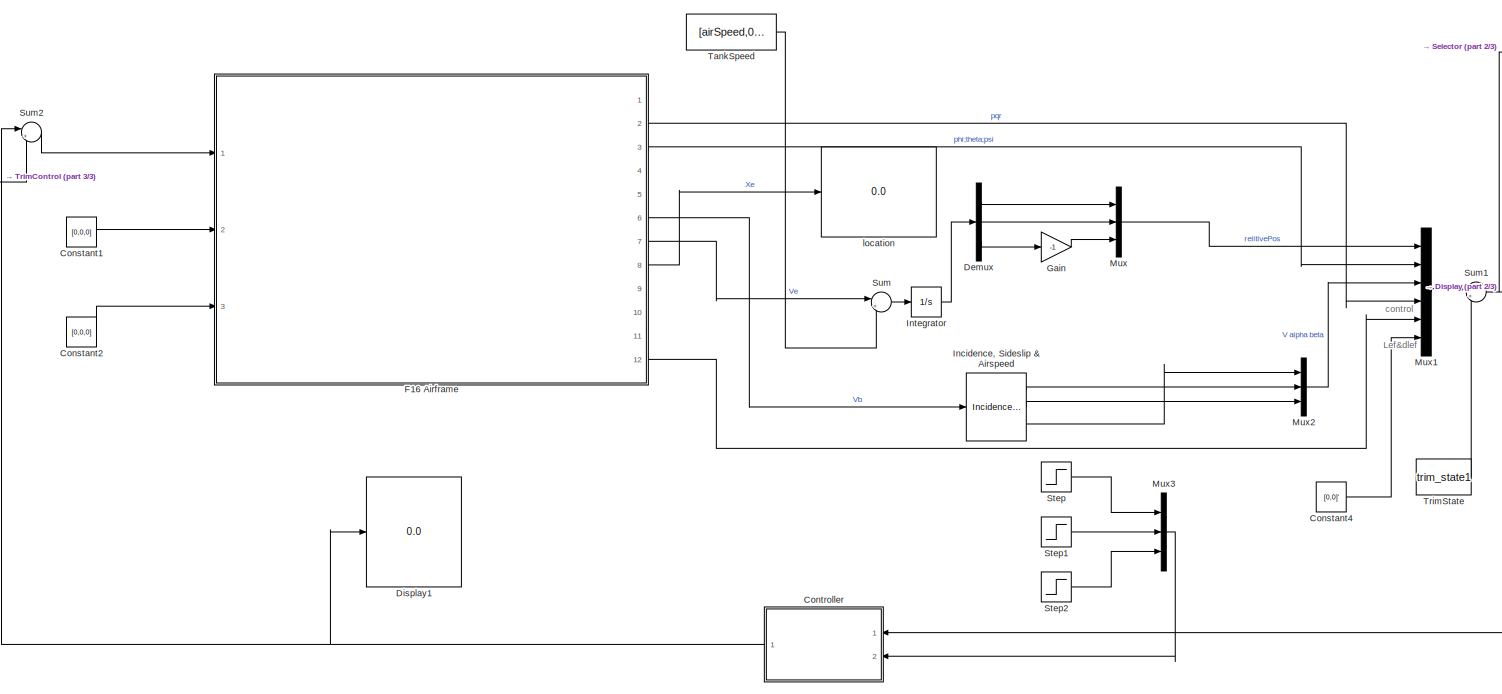
[diagram: root canvas - part 1/3, most of the canvas]
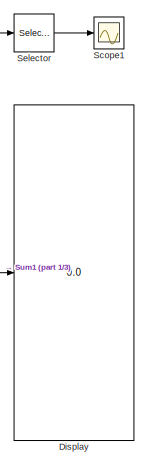
[diagram: root canvas - part 2/3, middle right region]
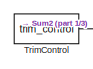
[diagram: root canvas - part 3/3, top left region]
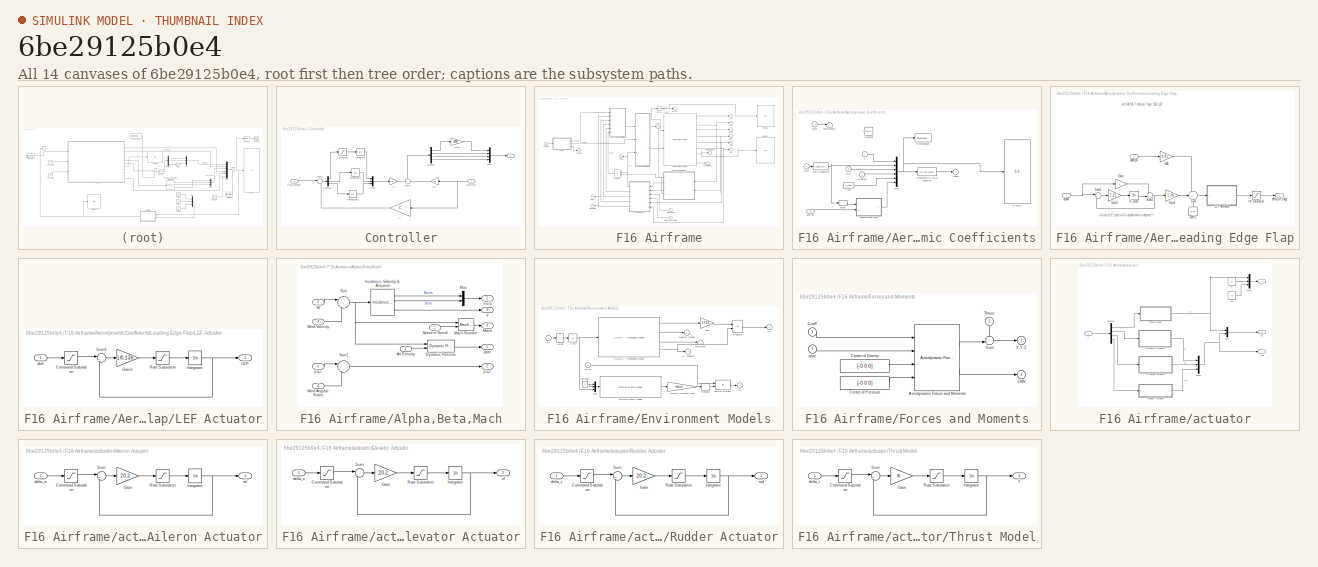
[diagram: thumbnail index - all 14 canvases of the model, root first then tree order]
MODEL slx_6be29125b0e4
KIND model
BLOCK [Constant] Constant1
  Value = [0,0,0]
BLOCK [Constant] Constant2
  Value = [0,0,0]
BLOCK [Constant] Constant4
  Value = [0,0]'
BLOCK [SubSystem] Controller
  FunctionWithSeparateData = off
  MaskHideContents = off
  MinAlgLoopOccurrences = off
  Opaque = off
  Ports = [2, 1]
  PropExecContextOutsideSubsystem = off
  RTWSystemCode = Auto
  RequestExecContextInheritance = off
BLOCK [Gain] Controller/C
  Gain = C
  Multiplication = Matrix(K*u) (u vector)
  OutDataTypeStr = Inherit: Inherit via internal rule
  ParamDataTypeStr = Inherit: Inherit via internal rule
  SaturateOnIntegerOverflow = off
BLOCK [Demux] Controller/Demux
  DisplayOption = bar
  Ports = [1, 4]
BLOCK [Demux] Controller/Demux1
  DisplayOption = bar
  Outputs = 3
  Ports = [1, 3]
BLOCK [Inport] Controller/F16State
  IconDisplay = Port number
BLOCK [Gain] Controller/Gain
  Gain = 1000
  OutDataTypeStr = Inherit: Inherit via internal rule
  ParamDataTypeStr = Inherit: Inherit via internal rule
  SaturateOnIntegerOverflow = off
BLOCK [Integrator] Controller/Integrator
  Ports = [1, 1]
BLOCK [Integrator] Controller/Integrator1
  Ports = [1, 1]
BLOCK [Integrator] Controller/Integrator2
  Ports = [1, 1]
BLOCK [Gain] Controller/Ki
  Gain = Ki
  Multiplication = Matrix(K*u) (u vector)
  OutDataTypeStr = Inherit: Inherit via internal rule
  ParamDataTypeStr = Inherit: Inherit via internal rule
  SaturateOnIntegerOverflow = off
BLOCK [Gain] Controller/Kp
  Gain = Kp
  Multiplication = Matrix(K*u) (u vector)
  OutDataTypeStr = Inherit: Inherit via internal rule
  ParamDataTypeStr = Inherit: Inherit via internal rule
  SaturateOnIntegerOverflow = off
BLOCK [Mux] Controller/Mux
  DisplayOption = bar
  Ports = [4, 1]
BLOCK [Mux] Controller/Mux3
  DisplayOption = bar
  Inputs = 3
  Ports = [3, 1]
BLOCK [Inport] Controller/Pos_Demand
  IconDisplay = Port number
  Port = 2
BLOCK [Saturate] Controller/Saturation
  InputPortMap = u0
  LowerLimit = -8
  Ports = [1, 1]
  UpperLimit = 8
BLOCK [Sum] Controller/Sum2
  IconShape = round
  InputSameDT = off
  Inputs = |+-
  OutDataTypeStr = Inherit: Inherit via internal rule
  Ports = [2, 1]
  SaturateOnIntegerOverflow = off
BLOCK [Sum] Controller/Sum3
  IconShape = round
  InputSameDT = off
  Inputs = +|-
  OutDataTypeStr = Inherit: Inherit via internal rule
  Ports = [2, 1]
  SaturateOnIntegerOverflow = off
BLOCK [Outport] Controller/U
  IconDisplay = Port number
BLOCK [Demux] Demux
  DisplayOption = bar
  Outputs = 3
  Ports = [1, 3]
BLOCK [Display] Display
  Decimation = 18
  Lockdown = off
  Ports = [1]
BLOCK [Display] Display1
  Decimation = 4
  Lockdown = off
  Ports = [1]
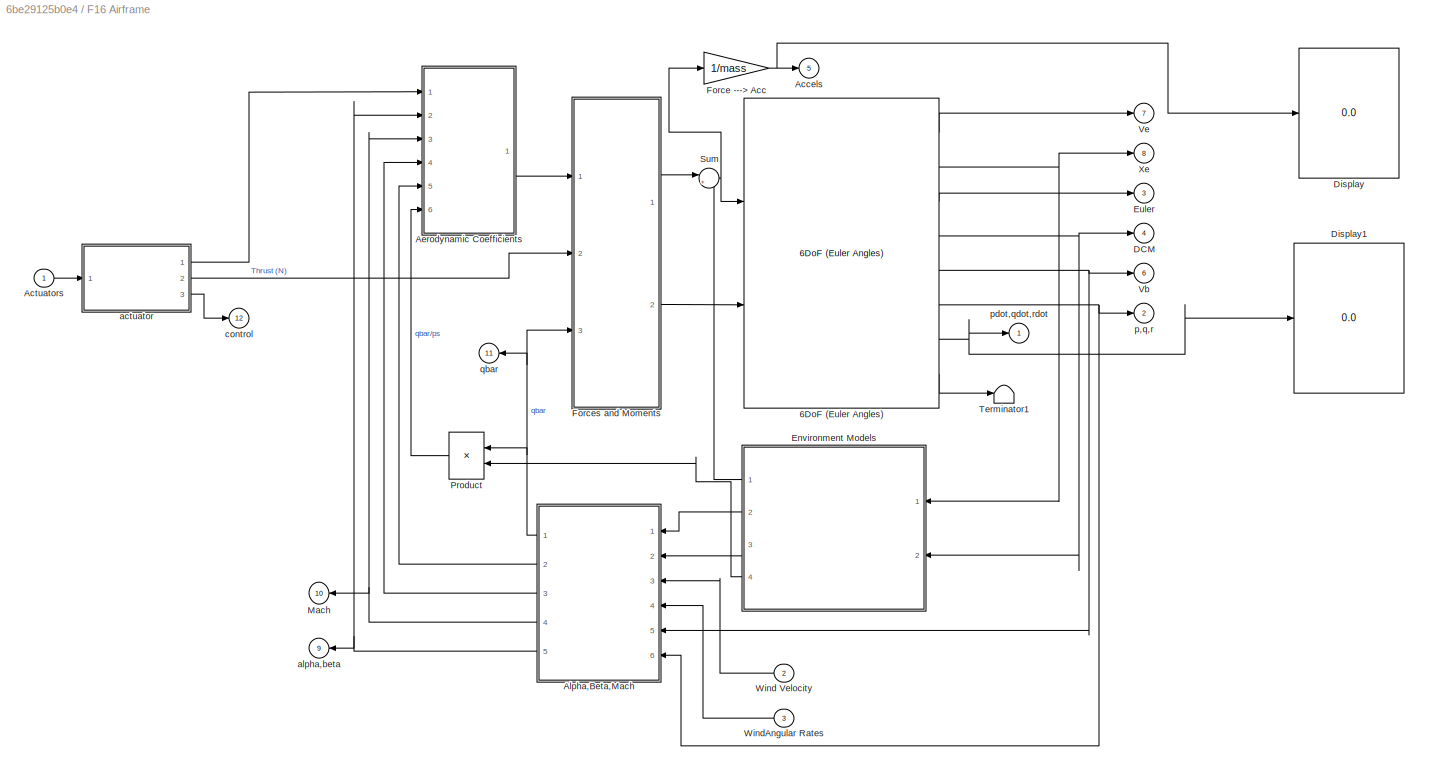
BLOCK [SubSystem] F16 Airframe
  FunctionWithSeparateData = off
  MaskHideContents = off
  MinAlgLoopOccurrences = off
  Opaque = off
  Ports = [3, 12]
  PropExecContextOutsideSubsystem = off
  RTWSystemCode = Auto
  RequestExecContextInheritance = off
BLOCK [Reference] F16 Airframe/6DoF (Euler Angles)  REF=aerolib6dof2/6DoF (Euler Angles)
  Ports = [2, 8]
  SourceBlock = aerolib6dof2/6DoF (Euler Angles)
  SourceType = 6DoF EoM (Body Axis)
  Vm_0 = Vmw
  eul_0 = Euler_0
  inertia = Inertia
  inertia_e = eye(3)
  inertia_f = 2*eye(3)
  k_quat = 1.0
  mass_0 = mass
  mass_e = 0.5
  mass_f = 2.0
  mtype = Fixed
  pm_0 = pm_0
  rep = Euler Angles
  units = English (Velocity in ft/s)
  xme_0 = xme_0
BLOCK [Outport] F16 Airframe/Accels
  IconDisplay = Port number
  InitialOutput = 0
  Port = 5
BLOCK [Inport] F16 Airframe/Actuators
  IconDisplay = Port number
BLOCK [SubSystem] F16 Airframe/Aerodynamic Coefficients
  FunctionWithSeparateData = off
  MaskHideContents = off
  MinAlgLoopOccurrences = off
  Opaque = off
  Ports = [6, 1]
  PropExecContextOutsideSubsystem = off
  RTWSystemCode = Auto
  RequestExecContextInheritance = off
BLOCK [Inport] F16 Airframe/Aerodynamic Coefficients/Actuators
  IconDisplay = Port number
BLOCK [Reference] F16 Airframe/Aerodynamic Coefficients/Angle Conversion  REF=aerolibconvert2/Angle Conversion
  IU = rad
  OU = deg
  Ports = [1, 1]
  SourceBlock = aerolibconvert2/Angle Conversion
  SourceType = Angle Conversion
BLOCK [Outport] F16 Airframe/Aerodynamic Coefficients/Coeff
  IconDisplay = Port number
  InitialOutput = 0
BLOCK [Constant] F16 Airframe/Aerodynamic Coefficients/Constant
  Value = zeros(11,1)
BLOCK [Display] F16 Airframe/Aerodynamic Coefficients/Display
  Decimation = 12
  Lockdown = off
  Ports = [1]
BLOCK [Inport] F16 Airframe/Aerodynamic Coefficients/Incid
  IconDisplay = Port number
  Port = 2
BLOCK [MATLABFcn] F16 Airframe/Aerodynamic Coefficients/Interpreted MATLAB Function
  MATLABFcn = F16Coef1
  OutputDimensions = 6
  Ports = [1, 1]
BLOCK [SubSystem] F16 Airframe/Aerodynamic Coefficients/Leading Edge Flap
  FunctionWithSeparateData = off
  MaskHideContents = off
  MinAlgLoopOccurrences = off
  Opaque = off
  Ports = [2, 1]
  PropExecContextOutsideSubsystem = off
  RTWSystemCode = Auto
  RequestExecContextInheritance = off
BLOCK [Gain] F16 Airframe/Aerodynamic Coefficients/Leading Edge Flap/Gain
  Gain = 2
BLOCK [Gain] F16 Airframe/Aerodynamic Coefficients/Leading Edge Flap/Gain1
  Gain = 7.25
BLOCK [Gain] F16 Airframe/Aerodynamic Coefficients/Leading Edge Flap/Gain2
  Gain = 1.38
BLOCK [SubSystem] F16 Airframe/Aerodynamic Coefficients/Leading Edge Flap/LEF Actuator
  FunctionWithSeparateData = off
  MaskHideContents = off
  MinAlgLoopOccurrences = off
  Opaque = off
  Ports = [1, 1]
  PropExecContextOutsideSubsystem = off
  RTWSystemCode = Auto
  RequestExecContextInheritance = off
BLOCK [Saturate] F16 Airframe/Aerodynamic Coefficients/Leading Edge Flap/LEF Actuator/Command Saturation
  InputPortMap = u0
  LowerLimit = 0
  Ports = [1, 1]
  UpperLimit = 25
BLOCK [Gain] F16 Airframe/Aerodynamic Coefficients/Leading Edge Flap/LEF Actuator/Gain3
  Gain = 1/0.136
BLOCK [Integrator] F16 Airframe/Aerodynamic Coefficients/Leading Edge Flap/LEF Actuator/Integrator 
  InitialCondition = dLEF
  LowerSaturationLimit = -21.5
  Ports = [1, 1]
  UpperSaturationLimit = 21.5
BLOCK [Outport] F16 Airframe/Aerodynamic Coefficients/Leading Edge Flap/LEF Actuator/LEF
  IconDisplay = Port number
BLOCK [Saturate] F16 Airframe/Aerodynamic Coefficients/Leading Edge Flap/LEF Actuator/Rate Saturation
  InputPortMap = u0
  LowerLimit = -25
  Ports = [1, 1]
  UpperLimit = 25
BLOCK [Sum] F16 Airframe/Aerodynamic Coefficients/Leading Edge Flap/LEF Actuator/Sum3
  IconShape = round
  Inputs = |+-
  Ports = [2, 1]
BLOCK [Inport] F16 Airframe/Aerodynamic Coefficients/Leading Edge Flap/LEF Actuator/dlef
  IconDisplay = Port number
BLOCK [Integrator] F16 Airframe/Aerodynamic Coefficients/Leading Edge Flap/LF_state
  InitialCondition = -alpha0
  Ports = [1, 1]
BLOCK [Sum] F16 Airframe/Aerodynamic Coefficients/Leading Edge Flap/Sum
  IconShape = round
  Inputs = -|+|+
  Ports = [3, 1]
BLOCK [Sum] F16 Airframe/Aerodynamic Coefficients/Leading Edge Flap/Sum1
  IconShape = round
  Inputs = |+-
  Ports = [2, 1]
BLOCK [Sum] F16 Airframe/Aerodynamic Coefficients/Leading Edge Flap/Sum2
  IconShape = round
  Inputs = ++|
  Ports = [2, 1]
BLOCK [Inport] F16 Airframe/Aerodynamic Coefficients/Leading Edge Flap/alpha
  IconDisplay = Port number
BLOCK [Constant] F16 Airframe/Aerodynamic Coefficients/Leading Edge Flap/coeff1
  Value = 1.45
BLOCK [Outport] F16 Airframe/Aerodynamic Coefficients/Leading Edge Flap/delta_lef (deg)
  IconDisplay = Port number
BLOCK [Saturate] F16 Airframe/Aerodynamic Coefficients/Leading Edge Flap/lef Saturation
  InputPortMap = u0
  LowerLimit = 0
  Ports = [1, 1]
  UpperLimit = 25
BLOCK [Inport] F16 Airframe/Aerodynamic Coefficients/Leading Edge Flap/qbar//ps
  IconDisplay = Port number
  Port = 2
BLOCK [Gain] F16 Airframe/Aerodynamic Coefficients/Leading Edge Flap/r2d6
  Gain = 9.05
BLOCK [Inport] F16 Airframe/Aerodynamic Coefficients/Mach
  IconDisplay = Port number
  Port = 3
BLOCK [Mux] F16 Airframe/Aerodynamic Coefficients/Mux
  DisplayOption = bar
  Inputs = 6
  Ports = [6, 1]
BLOCK [Terminator] F16 Airframe/Aerodynamic Coefficients/Terminator2
BLOCK [ToWorkspace] F16 Airframe/Aerodynamic Coefficients/To Workspace
  MaxDataPoints = inf
  Ports = [1]
  SampleTime = -1
  VariableName = simout
BLOCK [Inport] F16 Airframe/Aerodynamic Coefficients/V
  IconDisplay = Port number
  Port = 4
BLOCK [Selector] F16 Airframe/Aerodynamic Coefficients/alpha
  IndexOptions = Index vector (dialog)
  Indices = 1
  InputPortWidth = 2
  OutputSizes = 1
  Ports = [1, 1]
BLOCK [Constant] F16 Airframe/Aerodynamic Coefficients/flag
  Value = fi_flag
BLOCK [Inport] F16 Airframe/Aerodynamic Coefficients/p,q,r
  IconDisplay = Port number
  Port = 5
BLOCK [Inport] F16 Airframe/Aerodynamic Coefficients/qbar//ps
  IconDisplay = Port number
  Port = 6
BLOCK [SubSystem] F16 Airframe/Alpha,Beta,Mach
  FunctionWithSeparateData = off
  MaskHideContents = off
  MinAlgLoopOccurrences = off
  Opaque = off
  Ports = [6, 5]
  PropExecContextOutsideSubsystem = off
  RTWSystemCode = Auto
  RequestExecContextInheritance = off
BLOCK [Inport] F16 Airframe/Alpha,Beta,Mach/Air Density
  IconDisplay = Port number
  Port = 2
BLOCK [Reference] F16 Airframe/Alpha,Beta,Mach/Dynamic Pressure  REF=aerolibasang/Dynamic Pressure
  Ports = [2, 1]
  SourceBlock = aerolibasang/Dynamic Pressure
  SourceType = Dynamic Pressure
BLOCK [Outport] F16 Airframe/Alpha,Beta,Mach/Incid
  IconDisplay = Port number
  Port = 5
BLOCK [Reference] F16 Airframe/Alpha,Beta,Mach/Incidence, Sideslip & Airspeed  REF=aerolibasang/Incidence, Sideslip,
& Airspeed
  Ports = [1, 3]
  SourceBlock = aerolibasang/Incidence, Sideslip,\n& Airspeed
  SourceType = Incidence,Sideslip,&Airspeed
BLOCK [Outport] F16 Airframe/Alpha,Beta,Mach/Mach
  IconDisplay = Port number
  Port = 4
BLOCK [Reference] F16 Airframe/Alpha,Beta,Mach/Mach Number  REF=aerolibasang/Mach Number
  Ports = [2, 1]
  SourceBlock = aerolibasang/Mach Number
  SourceType = Mach Number
BLOCK [Mux] F16 Airframe/Alpha,Beta,Mach/Mux
  DisplayOption = bar
  Inputs = 2
  Ports = [2, 1]
BLOCK [Inport] F16 Airframe/Alpha,Beta,Mach/Speed of Sound
  IconDisplay = Port number
BLOCK [Sum] F16 Airframe/Alpha,Beta,Mach/Sum
  IconShape = round
  Inputs = |+-
  Ports = [2, 1]
BLOCK [Sum] F16 Airframe/Alpha,Beta,Mach/Sum1
  IconShape = round
  Inputs = |++
  Ports = [2, 1]
BLOCK [Outport] F16 Airframe/Alpha,Beta,Mach/V
  IconDisplay = Port number
  Port = 3
BLOCK [Inport] F16 Airframe/Alpha,Beta,Mach/Vb
  IconDisplay = Port number
  Port = 5
  PortDimensions = 3
BLOCK [Inport] F16 Airframe/Alpha,Beta,Mach/Wind Angular Rates
  IconDisplay = Port number
  Port = 4
  PortDimensions = 3
BLOCK [Inport] F16 Airframe/Alpha,Beta,Mach/Wind Velocity
  IconDisplay = Port number
  Port = 3
  PortDimensions = 3
BLOCK [Inport] F16 Airframe/Alpha,Beta,Mach/p,q,r
  IconDisplay = Port number
  Port = 6
  PortDimensions = 3
BLOCK [Outport] F16 Airframe/Alpha,Beta,Mach/p,q,r 
  IconDisplay = Port number
  Port = 2
BLOCK [Outport] F16 Airframe/Alpha,Beta,Mach/qbar
  IconDisplay = Port number
  InitialOutput = 0
BLOCK [Outport] F16 Airframe/DCM
  IconDisplay = Port number
  InitialOutput = 0
  Port = 4
BLOCK [Display] F16 Airframe/Display
  Decimation = 3
  Lockdown = off
  Ports = [1]
BLOCK [Display] F16 Airframe/Display1
  Decimation = 3
  Lockdown = off
  Ports = [1]
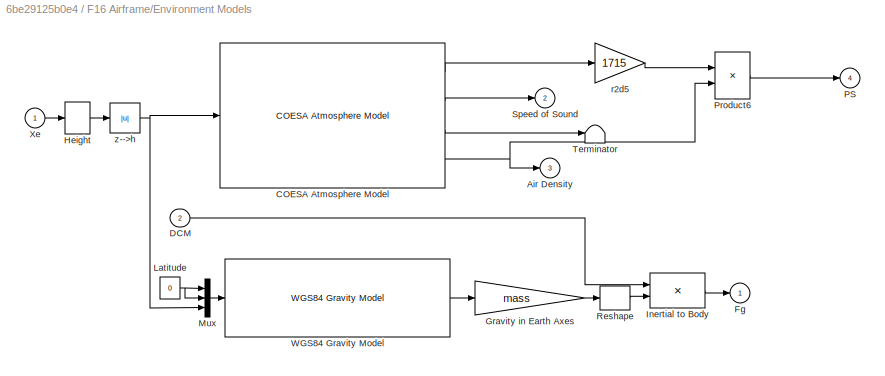
BLOCK [SubSystem] F16 Airframe/Environment Models
  FunctionWithSeparateData = off
  MaskHideContents = off
  MinAlgLoopOccurrences = off
  Opaque = off
  Ports = [2, 4]
  PropExecContextOutsideSubsystem = off
  RTWSystemCode = Auto
  RequestExecContextInheritance = off
BLOCK [Outport] F16 Airframe/Environment Models/Air Density
  IconDisplay = Port number
  InitialOutput = 0
  Port = 3
BLOCK [Reference] F16 Airframe/Environment Models/COESA Atmosphere Model  REF=aerolibatmos2/COESA Atmosphere Model
  Ports = [1, 4]
  SourceBlock = aerolibatmos2/COESA Atmosphere Model
  SourceType = Atmosphere Model
  action = None
  envelope_percent = 1%
  envelope_var = High temperature
  model = Profile
  profile_alt = 5 km (16404 ft)
  profile_percent = 10%
  profile_var = High temperature
  spec = 1976 COESA-extended U.S. Standard Atmosphere
  units = English (Velocity in ft/s)
BLOCK [Inport] F16 Airframe/Environment Models/DCM
  IconDisplay = Port number
  Port = 2
BLOCK [Outport] F16 Airframe/Environment Models/Fg
  IconDisplay = Port number
  InitialOutput = 0
BLOCK [Gain] F16 Airframe/Environment Models/Gravity in Earth Axes
  Gain = mass
BLOCK [Selector] F16 Airframe/Environment Models/Height
  IndexOptions = Index vector (dialog)
  Indices = [3]
  InputPortWidth = 3
  OutputSizes = 1
  Ports = [1, 1]
BLOCK [Product] F16 Airframe/Environment Models/Inertial to Body
  Multiplication = Matrix(*)
  Ports = [2, 1]
  RndMeth = Floor
BLOCK [Constant] F16 Airframe/Environment Models/Latitude
  Value = 0
BLOCK [Mux] F16 Airframe/Environment Models/Mux
  DisplayOption = bar
  Inputs = 3
  Ports = [3, 1]
BLOCK [Outport] F16 Airframe/Environment Models/PS
  IconDisplay = Port number
  Port = 4
BLOCK [Product] F16 Airframe/Environment Models/Product6
  Inputs = **
  Ports = [2, 1]
  RndMeth = Floor
BLOCK [Reshape] F16 Airframe/Environment Models/Reshape
  Ports = [1, 1]
BLOCK [Outport] F16 Airframe/Environment Models/Speed of Sound
  IconDisplay = Port number
  InitialOutput = 0
  Port = 2
BLOCK [Terminator] F16 Airframe/Environment Models/Terminator
BLOCK [Reference] F16 Airframe/Environment Models/WGS84 Gravity Model   REF=aerolibgravity2/WGS84 Gravity Model 
  Ports = [1, 1]
  SourceBlock = aerolibgravity2/WGS84 Gravity Model
  SourceType = WGS84 Gravity Model 3D
  action = None
  day = 10
  jd_loc = off
  model = WGS84 Taylor Series
  month = October
  no_atmos = on
  no_centrifugal = on
  precessing = on
  units = English
  year = 2004
BLOCK [Inport] F16 Airframe/Environment Models/Xe
  IconDisplay = Port number
  PortDimensions = 3
BLOCK [Gain] F16 Airframe/Environment Models/r2d5
  Gain = 1715
BLOCK [Abs] F16 Airframe/Environment Models/z-->h
BLOCK [Outport] F16 Airframe/Euler
  IconDisplay = Port number
  InitialOutput = 0
  Port = 3
BLOCK [Gain] F16 Airframe/Force ---> Acc
  Gain = 1/mass
BLOCK [SubSystem] F16 Airframe/Forces and Moments
  FunctionWithSeparateData = off
  MaskHideContents = off
  MinAlgLoopOccurrences = off
  Opaque = off
  Ports = [3, 2]
  PropExecContextOutsideSubsystem = off
  RTWSystemCode = Auto
  RequestExecContextInheritance = off
BLOCK [Reference] F16 Airframe/Forces and Moments/Aerodynamic Forces and Moments   REF=aerolibadyn/Aerodynamic
Forces and Moments 
  Ports = [4, 2]
  S = S_ref
  SourceBlock = aerolibadyn/Aerodynamic\nForces and Moments
  SourceType = Aerodynamic Forces and Moments
  b = b_ref
  cbar = d_ref
  inputAxes = Body
  outputForceAxes = Body
  outputMomentAxes = Body
BLOCK [Constant] F16 Airframe/Forces and Moments/Center of Gravity
  Value = [-0 0 0]
BLOCK [Constant] F16 Airframe/Forces and Moments/Center of Pressure
  Value = [-0 0 0]
BLOCK [Inport] F16 Airframe/Forces and Moments/Coeff
  IconDisplay = Port number
BLOCK [Outport] F16 Airframe/Forces and Moments/LMN
  IconDisplay = Port number
  InitialOutput = 0
  Port = 2
BLOCK [Sum] F16 Airframe/Forces and Moments/Sum
  IconShape = round
  Inputs = ++|
  Ports = [2, 1]
BLOCK [Inport] F16 Airframe/Forces and Moments/Thrust
  IconDisplay = Port number
  Port = 2
BLOCK [Outport] F16 Airframe/Forces and Moments/X,Y,Z
  IconDisplay = Port number
  InitialOutput = 0
BLOCK [Inport] F16 Airframe/Forces and Moments/qbar
  IconDisplay = Port number
  Port = 3
BLOCK [Outport] F16 Airframe/Mach
  IconDisplay = Port number
  InitialOutput = 0
  Port = 10
BLOCK [Product] F16 Airframe/Product
  Inputs = */
  Ports = [2, 1]
  RndMeth = Floor
BLOCK [Sum] F16 Airframe/Sum
  IconShape = round
  Inputs = |++
  Ports = [2, 1]
BLOCK [Terminator] F16 Airframe/Terminator1
BLOCK [Outport] F16 Airframe/Vb
  IconDisplay = Port number
  InitialOutput = 0
  Port = 6
BLOCK [Outport] F16 Airframe/Ve
  IconDisplay = Port number
  InitialOutput = 0
  Port = 7
BLOCK [Inport] F16 Airframe/Wind Velocity
  IconDisplay = Port number
  Port = 2
BLOCK [Inport] F16 Airframe/WindAngular Rates
  IconDisplay = Port number
  Port = 3
BLOCK [Outport] F16 Airframe/Xe
  IconDisplay = Port number
  InitialOutput = 0
  Port = 8
BLOCK [SubSystem] F16 Airframe/actuator
  FunctionWithSeparateData = off
  MaskHideContents = off
  MinAlgLoopOccurrences = off
  Opaque = off
  Ports = [1, 3]
  PropExecContextOutsideSubsystem = off
  RTWSystemCode = Auto
  RequestExecContextInheritance = off
BLOCK [SubSystem] F16 Airframe/actuator/Aileron Actuator
  FunctionWithSeparateData = off
  MaskHideContents = off
  MinAlgLoopOccurrences = off
  Opaque = off
  Ports = [1, 1]
  PropExecContextOutsideSubsystem = off
  RTWSystemCode = Auto
  RequestExecContextInheritance = off
BLOCK [Saturate] F16 Airframe/actuator/Aileron Actuator/Command Saturation
  InputPortMap = u0
  LowerLimit = -21.5
  Ports = [1, 1]
  UpperLimit = 21.5
BLOCK [Gain] F16 Airframe/actuator/Aileron Actuator/Gain
  Gain = 20.2
BLOCK [Integrator] F16 Airframe/actuator/Aileron Actuator/Integrator 
  InitialCondition = trim_ail
  LowerSaturationLimit = -21.5
  Ports = [1, 1]
  UpperSaturationLimit = 21.5
BLOCK [Saturate] F16 Airframe/actuator/Aileron Actuator/Rate Saturation
  InputPortMap = u0
  LowerLimit = -80
  Ports = [1, 1]
  UpperLimit = 80
BLOCK [Sum] F16 Airframe/actuator/Aileron Actuator/Sum
  IconShape = round
  Inputs = |+-
  Ports = [2, 1]
BLOCK [Outport] F16 Airframe/actuator/Aileron Actuator/ail
  IconDisplay = Port number
BLOCK [Inport] F16 Airframe/actuator/Aileron Actuator/delta_a
  IconDisplay = Port number
BLOCK [Outport] F16 Airframe/actuator/Ang
  IconDisplay = Port number
BLOCK [Demux] F16 Airframe/actuator/Demux
  DisplayOption = bar
  Ports = [1, 4]
BLOCK [SubSystem] F16 Airframe/actuator/Elevator Actuator
  FunctionWithSeparateData = off
  MaskHideContents = off
  MinAlgLoopOccurrences = off
  Opaque = off
  Ports = [1, 1]
  PropExecContextOutsideSubsystem = off
  RTWSystemCode = Auto
  RequestExecContextInheritance = off
BLOCK [Saturate] F16 Airframe/actuator/Elevator Actuator/Command Saturation
  InputPortMap = u0
  LowerLimit = -25
  Ports = [1, 1]
  UpperLimit = 25
BLOCK [Gain] F16 Airframe/actuator/Elevator Actuator/Gain
  Gain = 20.2
BLOCK [Integrator] F16 Airframe/actuator/Elevator Actuator/Integrator 
  InitialCondition = trim_ele
  LowerSaturationLimit = -25
  Ports = [1, 1]
  UpperSaturationLimit = 25
BLOCK [Saturate] F16 Airframe/actuator/Elevator Actuator/Rate Saturation
  InputPortMap = u0
  LowerLimit = -60
  Ports = [1, 1]
  UpperLimit = 60
BLOCK [Sum] F16 Airframe/actuator/Elevator Actuator/Sum
  IconShape = round
  Inputs = |+-
  Ports = [2, 1]
BLOCK [Inport] F16 Airframe/actuator/Elevator Actuator/delta_e
  IconDisplay = Port number
BLOCK [Outport] F16 Airframe/actuator/Elevator Actuator/el
  IconDisplay = Port number
BLOCK [Mux] F16 Airframe/actuator/Mux
  DisplayOption = bar
  Inputs = 2
  Ports = [2, 1]
BLOCK [Mux] F16 Airframe/actuator/Mux1
  DisplayOption = bar
  Inputs = 3
  Ports = [3, 1]
BLOCK [Mux] F16 Airframe/actuator/Mux2
  DisplayOption = bar
  Inputs = 3
  Ports = [3, 1]
BLOCK [SubSystem] F16 Airframe/actuator/Rudder Actuator
  FunctionWithSeparateData = off
  MaskHideContents = off
  MinAlgLoopOccurrences = off
  Opaque = off
  Ports = [1, 1]
  PropExecContextOutsideSubsystem = off
  RTWSystemCode = Auto
  RequestExecContextInheritance = off
BLOCK [Saturate] F16 Airframe/actuator/Rudder Actuator/Command Saturation
  InputPortMap = u0
  LowerLimit = -30
  Ports = [1, 1]
  UpperLimit = 30
BLOCK [Gain] F16 Airframe/actuator/Rudder Actuator/Gain
  Gain = 20.2
BLOCK [Integrator] F16 Airframe/actuator/Rudder Actuator/Integrator 
  InitialCondition = trim_rud
  LowerSaturationLimit = -30
  Ports = [1, 1]
  UpperSaturationLimit = 30
BLOCK [Saturate] F16 Airframe/actuator/Rudder Actuator/Rate Saturation
  InputPortMap = u0
  LowerLimit = -120
  Ports = [1, 1]
  UpperLimit = 120
BLOCK [Sum] F16 Airframe/actuator/Rudder Actuator/Sum
  IconShape = round
  Inputs = |+-
  Ports = [2, 1]
BLOCK [Inport] F16 Airframe/actuator/Rudder Actuator/delta_r
  IconDisplay = Port number
BLOCK [Outport] F16 Airframe/actuator/Rudder Actuator/rud
  IconDisplay = Port number
BLOCK [Outport] F16 Airframe/actuator/T
  IconDisplay = Port number
  Port = 2
BLOCK [SubSystem] F16 Airframe/actuator/Thrust Model
  FunctionWithSeparateData = off
  MaskHideContents = off
  MinAlgLoopOccurrences = off
  Opaque = off
  Ports = [1, 1]
  PropExecContextOutsideSubsystem = off
  RTWSystemCode = Auto
  RequestExecContextInheritance = off
BLOCK [Saturate] F16 Airframe/actuator/Thrust Model/Command Saturation
  InputPortMap = u0
  LowerLimit = 1000
  Ports = [1, 1]
  UpperLimit = 19000
BLOCK [Gain] F16 Airframe/actuator/Thrust Model/Gain
BLOCK [Integrator] F16 Airframe/actuator/Thrust Model/Integrator 
  InitialCondition = trim_thrust
  LowerSaturationLimit = -30
  Ports = [1, 1]
  UpperSaturationLimit = 30
BLOCK [Saturate] F16 Airframe/actuator/Thrust Model/Rate Saturation
  InputPortMap = u0
  LowerLimit = -10000
  Ports = [1, 1]
  UpperLimit = 10000
BLOCK [Sum] F16 Airframe/actuator/Thrust Model/Sum
  IconShape = round
  Inputs = |+-
  Ports = [2, 1]
BLOCK [Outport] F16 Airframe/actuator/Thrust Model/T
  IconDisplay = Port number
BLOCK [Inport] F16 Airframe/actuator/Thrust Model/delta_t
  IconDisplay = Port number
BLOCK [Constant] F16 Airframe/actuator/Ty
  Value = 0
BLOCK [Constant] F16 Airframe/actuator/Tz
  Value = 0
BLOCK [Inport] F16 Airframe/actuator/u
  IconDisplay = Port number
BLOCK [Outport] F16 Airframe/actuator/uc
  IconDisplay = Port number
  Port = 3
BLOCK [Outport] F16 Airframe/alpha,beta
  IconDisplay = Port number
  InitialOutput = 0
  Port = 9
BLOCK [Outport] F16 Airframe/control
  IconDisplay = Port number
  InitialOutput = 0
  Port = 12
BLOCK [Outport] F16 Airframe/p,q,r
  IconDisplay = Port number
  InitialOutput = 0
  Port = 2
BLOCK [Outport] F16 Airframe/pdot,qdot,rdot
  IconDisplay = Port number
  InitialOutput = 0
BLOCK [Outport] F16 Airframe/qbar
  IconDisplay = Port number
  InitialOutput = 0
  Port = 11
BLOCK [Gain] Gain
  Gain = -1
  OutDataTypeStr = Inherit: Inherit via internal rule
  ParamDataTypeStr = Inherit: Inherit via internal rule
  SaturateOnIntegerOverflow = off
BLOCK [Reference] Incidence, Sideslip & Airspeed  REF=aerolibasang/Incidence, Sideslip,
& Airspeed
  Ports = [1, 3]
  SourceBlock = aerolibasang/Incidence, Sideslip,\n& Airspeed
  SourceType = Incidence,Sideslip,&Airspeed
BLOCK [Integrator] Integrator
  Ports = [1, 1]
BLOCK [Mux] Mux
  DisplayOption = bar
  Inputs = 3
  Ports = [3, 1]
BLOCK [Mux] Mux1
  DisplayOption = bar
  Inputs = 6
  Ports = [6, 1]
BLOCK [Mux] Mux2
  DisplayOption = bar
  Inputs = 3
  Ports = [3, 1]
BLOCK [Mux] Mux3
  DisplayOption = bar
  Inputs = 3
  Ports = [3, 1]
BLOCK [Scope] Scope1
  DataFormat = StructureWithTime
  Floating = off
  NumInputPorts = 1
  Ports = [1]
  SampleTime = 0
  SaveName = ScopeData1
  ShowLegends = off
BLOCK [Selector] Selector
  IndexOptions = Index vector (dialog)
  Indices = [1 2 3]
  InputPortWidth = 18
  OutputSizes = 1
  Ports = [1, 1]
BLOCK [Step] Step
  After = 10
  SampleTime = 0
  Time = 20
BLOCK [Step] Step1
  SampleTime = 0
  Time = 20
BLOCK [Step] Step2
  SampleTime = 0
  Time = 20
BLOCK [Sum] Sum
  IconShape = round
  InputSameDT = off
  Inputs = |+-
  OutDataTypeStr = Inherit: Inherit via internal rule
  Ports = [2, 1]
  SaturateOnIntegerOverflow = off
BLOCK [Sum] Sum1
  IconShape = round
  InputSameDT = off
  Inputs = |+-
  OutDataTypeStr = Inherit: Inherit via internal rule
  Ports = [2, 1]
  SaturateOnIntegerOverflow = off
BLOCK [Sum] Sum2
  IconShape = round
  InputSameDT = off
  Inputs = |++
  OutDataTypeStr = Inherit: Inherit via internal rule
  Ports = [2, 1]
  SaturateOnIntegerOverflow = off
BLOCK [Constant] TankSpeed
  Value = [airSpeed,0,0]
BLOCK [Constant] TrimControl
  Value = trim_control
BLOCK [Constant] TrimState
  Value = trim_state1
BLOCK [Display] location
  Decimation = 3
  Lockdown = off
  Ports = [1]
ANNOTATION (root): Lef&dlef
ANNOTATION (root): control
ANNOTATION Controller: e
ANNOTATION F16 Airframe/Aerodynamic Coefficients/Leading Edge Flap: Initialize LF_state with -alpha0 value in degrees!!!!
ANNOTATION F16 Airframe/Aerodynamic Coefficients/Leading Edge Flap: see NASA Technical Paper 1538, p34
LINE Constant1:1 -> F16 Airframe:2
LINE Constant2:1 -> F16 Airframe:3
LINE Constant4:1 -> Mux1:6
LINE Controller/C:1 -> Controller/Sum2:2
LINE Controller/Demux1:1 -> Controller/Saturation:1
LINE Controller/Demux1:2 -> Controller/Integrator1:1
LINE Controller/Demux1:3 -> Controller/Integrator2:1
LINE Controller/Demux:1 -> Controller/Gain:1
LINE Controller/Demux:2 -> Controller/Mux:2
LINE Controller/Demux:3 -> Controller/Mux:3
LINE Controller/Demux:4 -> Controller/Mux:4
NET Controller/F16State:1 -> Controller/C:1, Controller/Kp:1
LINE Controller/Gain:1 -> Controller/Mux:1
LINE Controller/Integrator1:1 -> Controller/Mux3:2
LINE Controller/Integrator2:1 -> Controller/Mux3:3
LINE Controller/Integrator:1 -> Controller/Mux3:1
LINE Controller/Ki:1 -> Controller/Sum3:1
LINE Controller/Kp:1 -> Controller/Sum3:2
LINE Controller/Mux3:1 -> Controller/Ki:1
LINE Controller/Mux:1 -> Controller/U:1
LINE Controller/Pos_Demand:1 -> Controller/Sum2:1
LINE Controller/Saturation:1 -> Controller/Integrator:1
LINE Controller/Sum2:1 -> Controller/Demux1:1
LINE Controller/Sum3:1 -> Controller/Demux:1
NET Controller:1 -> Display1:1, Sum2:1
LINE Demux:1 -> Mux:1
LINE Demux:2 -> Mux:2
LINE Demux:3 -> Gain:1
LINE F16 Airframe/6DoF (Euler Angles):1 -> F16 Airframe/Ve:1
NET F16 Airframe/6DoF (Euler Angles):2 -> F16 Airframe/Environment Models:1, F16 Airframe/Xe:1
LINE F16 Airframe/6DoF (Euler Angles):3 -> F16 Airframe/Euler:1
NET F16 Airframe/6DoF (Euler Angles):4 -> F16 Airframe/DCM:1, F16 Airframe/Environment Models:2
NET F16 Airframe/6DoF (Euler Angles):5 -> F16 Airframe/Alpha,Beta,Mach:5, F16 Airframe/Vb:1
NET F16 Airframe/6DoF (Euler Angles):6 -> F16 Airframe/Alpha,Beta,Mach:6, F16 Airframe/p,q,r:1
NET F16 Airframe/6DoF (Euler Angles):7 -> F16 Airframe/Display1:1, F16 Airframe/pdot,qdot,rdot:1
LINE F16 Airframe/6DoF (Euler Angles):8 -> F16 Airframe/Terminator1:1
LINE F16 Airframe/Actuators:1 -> F16 Airframe/actuator:1
LINE F16 Airframe/Aerodynamic Coefficients/Actuators:1 -> F16 Airframe/Aerodynamic Coefficients/Mux:4
NET F16 Airframe/Aerodynamic Coefficients/Angle Conversion:1 -> F16 Airframe/Aerodynamic Coefficients/Mux:2, F16 Airframe/Aerodynamic Coefficients/alpha:1
LINE F16 Airframe/Aerodynamic Coefficients/Incid:1 -> F16 Airframe/Aerodynamic Coefficients/Angle Conversion:1
LINE F16 Airframe/Aerodynamic Coefficients/Interpreted MATLAB Function:1 -> F16 Airframe/Aerodynamic Coefficients/Coeff:1
LINE F16 Airframe/Aerodynamic Coefficients/Leading Edge Flap/Gain1:1 -> F16 Airframe/Aerodynamic Coefficients/Leading Edge Flap/LF_state:1
LINE F16 Airframe/Aerodynamic Coefficients/Leading Edge Flap/Gain2:1 -> F16 Airframe/Aerodynamic Coefficients/Leading Edge Flap/Sum:2
LINE F16 Airframe/Aerodynamic Coefficients/Leading Edge Flap/Gain:1 -> F16 Airframe/Aerodynamic Coefficients/Leading Edge Flap/Sum2:1
LINE F16 Airframe/Aerodynamic Coefficients/Leading Edge Flap/LEF Actuator/Command Saturation:1 -> F16 Airframe/Aerodynamic Coefficients/Leading Edge Flap/LEF Actuator/Sum3:1
LINE F16 Airframe/Aerodynamic Coefficients/Leading Edge Flap/LEF Actuator/Gain3:1 -> F16 Airframe/Aerodynamic Coefficients/Leading Edge Flap/LEF Actuator/Rate Saturation:1
NET F16 Airframe/Aerodynamic Coefficients/Leading Edge Flap/LEF Actuator/Integrator :1 -> F16 Airframe/Aerodynamic Coefficients/Leading Edge Flap/LEF Actuator/LEF:1, F16 Airframe/Aerodynamic Coefficients/Leading Edge Flap/LEF Actuator/Sum3:2
LINE F16 Airframe/Aerodynamic Coefficients/Leading Edge Flap/LEF Actuator/Rate Saturation:1 -> F16 Airframe/Aerodynamic Coefficients/Leading Edge Flap/LEF Actuator/Integrator :1
LINE F16 Airframe/Aerodynamic Coefficients/Leading Edge Flap/LEF Actuator/Sum3:1 -> F16 Airframe/Aerodynamic Coefficients/Leading Edge Flap/LEF Actuator/Gain3:1
LINE F16 Airframe/Aerodynamic Coefficients/Leading Edge Flap/LEF Actuator/dlef:1 -> F16 Airframe/Aerodynamic Coefficients/Leading Edge Flap/LEF Actuator/Command Saturation:1
LINE F16 Airframe/Aerodynamic Coefficients/Leading Edge Flap/LEF Actuator:1 -> F16 Airframe/Aerodynamic Coefficients/Leading Edge Flap/lef Saturation:1
LINE F16 Airframe/Aerodynamic Coefficients/Leading Edge Flap/LF_state:1 -> F16 Airframe/Aerodynamic Coefficients/Leading Edge Flap/Sum2:2
LINE F16 Airframe/Aerodynamic Coefficients/Leading Edge Flap/Sum1:1 -> F16 Airframe/Aerodynamic Coefficients/Leading Edge Flap/Gain1:1
NET F16 Airframe/Aerodynamic Coefficients/Leading Edge Flap/Sum2:1 -> F16 Airframe/Aerodynamic Coefficients/Leading Edge Flap/Gain2:1, F16 Airframe/Aerodynamic Coefficients/Leading Edge Flap/Sum1:2
LINE F16 Airframe/Aerodynamic Coefficients/Leading Edge Flap/Sum:1 -> F16 Airframe/Aerodynamic Coefficients/Leading Edge Flap/LEF Actuator:1
NET F16 Airframe/Aerodynamic Coefficients/Leading Edge Flap/alpha:1 -> F16 Airframe/Aerodynamic Coefficients/Leading Edge Flap/Gain:1, F16 Airframe/Aerodynamic Coefficients/Leading Edge Flap/Sum1:1
LINE F16 Airframe/Aerodynamic Coefficients/Leading Edge Flap/coeff1:1 -> F16 Airframe/Aerodynamic Coefficients/Leading Edge Flap/Sum:3
LINE F16 Airframe/Aerodynamic Coefficients/Leading Edge Flap/lef Saturation:1 -> F16 Airframe/Aerodynamic Coefficients/Leading Edge Flap/delta_lef (deg):1
LINE F16 Airframe/Aerodynamic Coefficients/Leading Edge Flap/qbar//ps:1 -> F16 Airframe/Aerodynamic Coefficients/Leading Edge Flap/r2d6:1
LINE F16 Airframe/Aerodynamic Coefficients/Leading Edge Flap/r2d6:1 -> F16 Airframe/Aerodynamic Coefficients/Leading Edge Flap/Sum:1
LINE F16 Airframe/Aerodynamic Coefficients/Leading Edge Flap:1 -> F16 Airframe/Aerodynamic Coefficients/Mux:6
LINE F16 Airframe/Aerodynamic Coefficients/Mach:1 -> F16 Airframe/Aerodynamic Coefficients/Terminator2:1
NET F16 Airframe/Aerodynamic Coefficients/Mux:1 -> F16 Airframe/Aerodynamic Coefficients/Display:1, F16 Airframe/Aerodynamic Coefficients/Interpreted MATLAB Function:1, F16 Airframe/Aerodynamic Coefficients/To Workspace:1
LINE F16 Airframe/Aerodynamic Coefficients/V:1 -> F16 Airframe/Aerodynamic Coefficients/Mux:1
LINE F16 Airframe/Aerodynamic Coefficients/alpha:1 -> F16 Airframe/Aerodynamic Coefficients/Leading Edge Flap:1
LINE F16 Airframe/Aerodynamic Coefficients/flag:1 -> F16 Airframe/Aerodynamic Coefficients/Mux:5
LINE F16 Airframe/Aerodynamic Coefficients/p,q,r:1 -> F16 Airframe/Aerodynamic Coefficients/Mux:3
LINE F16 Airframe/Aerodynamic Coefficients/qbar//ps:1 -> F16 Airframe/Aerodynamic Coefficients/Leading Edge Flap:2
LINE F16 Airframe/Aerodynamic Coefficients:1 -> F16 Airframe/Forces and Moments:1
LINE F16 Airframe/Alpha,Beta,Mach/Air Density:1 -> F16 Airframe/Alpha,Beta,Mach/Dynamic Pressure:2
LINE F16 Airframe/Alpha,Beta,Mach/Dynamic Pressure:1 -> F16 Airframe/Alpha,Beta,Mach/qbar:1
LINE F16 Airframe/Alpha,Beta,Mach/Incidence, Sideslip & Airspeed:1 -> F16 Airframe/Alpha,Beta,Mach/Mux:1
LINE F16 Airframe/Alpha,Beta,Mach/Incidence, Sideslip & Airspeed:2 -> F16 Airframe/Alpha,Beta,Mach/Mux:2
LINE F16 Airframe/Alpha,Beta,Mach/Incidence, Sideslip & Airspeed:3 -> F16 Airframe/Alpha,Beta,Mach/V:1
LINE F16 Airframe/Alpha,Beta,Mach/Mach Number:1 -> F16 Airframe/Alpha,Beta,Mach/Mach:1
LINE F16 Airframe/Alpha,Beta,Mach/Mux:1 -> F16 Airframe/Alpha,Beta,Mach/Incid:1
LINE F16 Airframe/Alpha,Beta,Mach/Speed of Sound:1 -> F16 Airframe/Alpha,Beta,Mach/Mach Number:2
LINE F16 Airframe/Alpha,Beta,Mach/Sum1:1 -> F16 Airframe/Alpha,Beta,Mach/p,q,r :1
NET F16 Airframe/Alpha,Beta,Mach/Sum:1 -> F16 Airframe/Alpha,Beta,Mach/Dynamic Pressure:1, F16 Airframe/Alpha,Beta,Mach/Incidence, Sideslip & Airspeed:1, F16 Airframe/Alpha,Beta,Mach/Mach Number:1
LINE F16 Airframe/Alpha,Beta,Mach/Vb:1 -> F16 Airframe/Alpha,Beta,Mach/Sum:1
LINE F16 Airframe/Alpha,Beta,Mach/Wind Angular Rates:1 -> F16 Airframe/Alpha,Beta,Mach/Sum1:2
LINE F16 Airframe/Alpha,Beta,Mach/Wind Velocity:1 -> F16 Airframe/Alpha,Beta,Mach/Sum:2
LINE F16 Airframe/Alpha,Beta,Mach/p,q,r:1 -> F16 Airframe/Alpha,Beta,Mach/Sum1:1
NET F16 Airframe/Alpha,Beta,Mach:1 -> F16 Airframe/Forces and Moments:3, F16 Airframe/Product:1, F16 Airframe/qbar:1
LINE F16 Airframe/Alpha,Beta,Mach:2 -> F16 Airframe/Aerodynamic Coefficients:5
LINE F16 Airframe/Alpha,Beta,Mach:3 -> F16 Airframe/Aerodynamic Coefficients:4
NET F16 Airframe/Alpha,Beta,Mach:4 -> F16 Airframe/Aerodynamic Coefficients:3, F16 Airframe/Mach:1
NET F16 Airframe/Alpha,Beta,Mach:5 -> F16 Airframe/Aerodynamic Coefficients:2, F16 Airframe/alpha,beta:1
LINE F16 Airframe/Environment Models/COESA Atmosphere Model:1 -> F16 Airframe/Environment Models/r2d5:1
LINE F16 Airframe/Environment Models/COESA Atmosphere Model:2 -> F16 Airframe/Environment Models/Speed of Sound:1
LINE F16 Airframe/Environment Models/COESA Atmosphere Model:3 -> F16 Airframe/Environment Models/Terminator:1
NET F16 Airframe/Environment Models/COESA Atmosphere Model:4 -> F16 Airframe/Environment Models/Air Density:1, F16 Airframe/Environment Models/Product6:2
LINE F16 Airframe/Environment Models/DCM:1 -> F16 Airframe/Environment Models/Inertial to Body:1
LINE F16 Airframe/Environment Models/Gravity in Earth Axes:1 -> F16 Airframe/Environment Models/Reshape:1
LINE F16 Airframe/Environment Models/Height:1 -> F16 Airframe/Environment Models/z-->h:1
LINE F16 Airframe/Environment Models/Inertial to Body:1 -> F16 Airframe/Environment Models/Fg:1
NET F16 Airframe/Environment Models/Latitude:1 -> F16 Airframe/Environment Models/Mux:1, F16 Airframe/Environment Models/Mux:2
LINE F16 Airframe/Environment Models/Mux:1 -> F16 Airframe/Environment Models/WGS84 Gravity Model :1
LINE F16 Airframe/Environment Models/Product6:1 -> F16 Airframe/Environment Models/PS:1
LINE F16 Airframe/Environment Models/Reshape:1 -> F16 Airframe/Environment Models/Inertial to Body:2
LINE F16 Airframe/Environment Models/WGS84 Gravity Model :1 -> F16 Airframe/Environment Models/Gravity in Earth Axes:1
LINE F16 Airframe/Environment Models/Xe:1 -> F16 Airframe/Environment Models/Height:1
LINE F16 Airframe/Environment Models/r2d5:1 -> F16 Airframe/Environment Models/Product6:1
NET F16 Airframe/Environment Models/z-->h:1 -> F16 Airframe/Environment Models/COESA Atmosphere Model:1, F16 Airframe/Environment Models/Mux:3
LINE F16 Airframe/Environment Models:1 -> F16 Airframe/Sum:2
LINE F16 Airframe/Environment Models:2 -> F16 Airframe/Alpha,Beta,Mach:1
LINE F16 Airframe/Environment Models:3 -> F16 Airframe/Alpha,Beta,Mach:2
LINE F16 Airframe/Environment Models:4 -> F16 Airframe/Product:2
NET F16 Airframe/Force ---> Acc:1 -> F16 Airframe/Accels:1, F16 Airframe/Display:1
LINE F16 Airframe/Forces and Moments/Aerodynamic Forces and Moments :1 -> F16 Airframe/Forces and Moments/Sum:2
LINE F16 Airframe/Forces and Moments/Aerodynamic Forces and Moments :2 -> F16 Airframe/Forces and Moments/LMN:1
LINE F16 Airframe/Forces and Moments/Center of Gravity:1 -> F16 Airframe/Forces and Moments/Aerodynamic Forces and Moments :3
LINE F16 Airframe/Forces and Moments/Center of Pressure:1 -> F16 Airframe/Forces and Moments/Aerodynamic Forces and Moments :4
LINE F16 Airframe/Forces and Moments/Coeff:1 -> F16 Airframe/Forces and Moments/Aerodynamic Forces and Moments :1
LINE F16 Airframe/Forces and Moments/Sum:1 -> F16 Airframe/Forces and Moments/X,Y,Z:1
LINE F16 Airframe/Forces and Moments/Thrust:1 -> F16 Airframe/Forces and Moments/Sum:1
LINE F16 Airframe/Forces and Moments/qbar:1 -> F16 Airframe/Forces and Moments/Aerodynamic Forces and Moments :2
LINE F16 Airframe/Forces and Moments:1 -> F16 Airframe/Sum:1
LINE F16 Airframe/Forces and Moments:2 -> F16 Airframe/6DoF (Euler Angles):2
LINE F16 Airframe/Product:1 -> F16 Airframe/Aerodynamic Coefficients:6
NET F16 Airframe/Sum:1 -> F16 Airframe/6DoF (Euler Angles):1, F16 Airframe/Force ---> Acc:1
LINE F16 Airframe/Wind Velocity:1 -> F16 Airframe/Alpha,Beta,Mach:3
LINE F16 Airframe/WindAngular Rates:1 -> F16 Airframe/Alpha,Beta,Mach:4
LINE F16 Airframe/actuator/Aileron Actuator/Command Saturation:1 -> F16 Airframe/actuator/Aileron Actuator/Sum:1
LINE F16 Airframe/actuator/Aileron Actuator/Gain:1 -> F16 Airframe/actuator/Aileron Actuator/Rate Saturation:1
NET F16 Airframe/actuator/Aileron Actuator/Integrator :1 -> F16 Airframe/actuator/Aileron Actuator/Sum:2, F16 Airframe/actuator/Aileron Actuator/ail:1
LINE F16 Airframe/actuator/Aileron Actuator/Rate Saturation:1 -> F16 Airframe/actuator/Aileron Actuator/Integrator :1
LINE F16 Airframe/actuator/Aileron Actuator/Sum:1 -> F16 Airframe/actuator/Aileron Actuator/Gain:1
LINE F16 Airframe/actuator/Aileron Actuator/delta_a:1 -> F16 Airframe/actuator/Aileron Actuator/Command Saturation:1
LINE F16 Airframe/actuator/Aileron Actuator:1 -> F16 Airframe/actuator/Mux2:2
LINE F16 Airframe/actuator/Demux:1 -> F16 Airframe/actuator/Thrust Model:1
LINE F16 Airframe/actuator/Demux:2 -> F16 Airframe/actuator/Elevator Actuator:1
LINE F16 Airframe/actuator/Demux:3 -> F16 Airframe/actuator/Aileron Actuator:1
LINE F16 Airframe/actuator/Demux:4 -> F16 Airframe/actuator/Rudder Actuator:1
LINE F16 Airframe/actuator/Elevator Actuator/Command Saturation:1 -> F16 Airframe/actuator/Elevator Actuator/Sum:1
LINE F16 Airframe/actuator/Elevator Actuator/Gain:1 -> F16 Airframe/actuator/Elevator Actuator/Rate Saturation:1
NET F16 Airframe/actuator/Elevator Actuator/Integrator :1 -> F16 Airframe/actuator/Elevator Actuator/Sum:2, F16 Airframe/actuator/Elevator Actuator/el:1
LINE F16 Airframe/actuator/Elevator Actuator/Rate Saturation:1 -> F16 Airframe/actuator/Elevator Actuator/Integrator :1
LINE F16 Airframe/actuator/Elevator Actuator/Sum:1 -> F16 Airframe/actuator/Elevator Actuator/Gain:1
LINE F16 Airframe/actuator/Elevator Actuator/delta_e:1 -> F16 Airframe/actuator/Elevator Actuator/Command Saturation:1
LINE F16 Airframe/actuator/Elevator Actuator:1 -> F16 Airframe/actuator/Mux2:1
LINE F16 Airframe/actuator/Mux1:1 -> F16 Airframe/actuator/T:1
NET F16 Airframe/actuator/Mux2:1 -> F16 Airframe/actuator/Ang:1, F16 Airframe/actuator/Mux:2
LINE F16 Airframe/actuator/Mux:1 -> F16 Airframe/actuator/uc:1
LINE F16 Airframe/actuator/Rudder Actuator/Command Saturation:1 -> F16 Airframe/actuator/Rudder Actuator/Sum:1
LINE F16 Airframe/actuator/Rudder Actuator/Gain:1 -> F16 Airframe/actuator/Rudder Actuator/Rate Saturation:1
NET F16 Airframe/actuator/Rudder Actuator/Integrator :1 -> F16 Airframe/actuator/Rudder Actuator/Sum:2, F16 Airframe/actuator/Rudder Actuator/rud:1
LINE F16 Airframe/actuator/Rudder Actuator/Rate Saturation:1 -> F16 Airframe/actuator/Rudder Actuator/Integrator :1
LINE F16 Airframe/actuator/Rudder Actuator/Sum:1 -> F16 Airframe/actuator/Rudder Actuator/Gain:1
LINE F16 Airframe/actuator/Rudder Actuator/delta_r:1 -> F16 Airframe/actuator/Rudder Actuator/Command Saturation:1
LINE F16 Airframe/actuator/Rudder Actuator:1 -> F16 Airframe/actuator/Mux2:3
LINE F16 Airframe/actuator/Thrust Model/Command Saturation:1 -> F16 Airframe/actuator/Thrust Model/Sum:1
LINE F16 Airframe/actuator/Thrust Model/Gain:1 -> F16 Airframe/actuator/Thrust Model/Rate Saturation:1
NET F16 Airframe/actuator/Thrust Model/Integrator :1 -> F16 Airframe/actuator/Thrust Model/Sum:2, F16 Airframe/actuator/Thrust Model/T:1
LINE F16 Airframe/actuator/Thrust Model/Rate Saturation:1 -> F16 Airframe/actuator/Thrust Model/Integrator :1
LINE F16 Airframe/actuator/Thrust Model/Sum:1 -> F16 Airframe/actuator/Thrust Model/Gain:1
LINE F16 Airframe/actuator/Thrust Model/delta_t:1 -> F16 Airframe/actuator/Thrust Model/Command Saturation:1
NET F16 Airframe/actuator/Thrust Model:1 -> F16 Airframe/actuator/Mux1:1, F16 Airframe/actuator/Mux:1
LINE F16 Airframe/actuator/Ty:1 -> F16 Airframe/actuator/Mux1:2
LINE F16 Airframe/actuator/Tz:1 -> F16 Airframe/actuator/Mux1:3
LINE F16 Airframe/actuator/u:1 -> F16 Airframe/actuator/Demux:1
LINE F16 Airframe/actuator:1 -> F16 Airframe/Aerodynamic Coefficients:1
LINE F16 Airframe/actuator:2 -> F16 Airframe/Forces and Moments:2
LINE F16 Airframe/actuator:3 -> F16 Airframe/control:1
LINE F16 Airframe:12 -> Mux1:5
LINE F16 Airframe:2 -> Mux1:4
LINE F16 Airframe:3 -> Mux1:2
LINE F16 Airframe:6 -> Incidence, Sideslip & Airspeed:1
LINE F16 Airframe:7 -> Sum:1
LINE F16 Airframe:8 -> location:1
LINE Gain:1 -> Mux:3
LINE Incidence, Sideslip & Airspeed:1 -> Mux2:2
LINE Incidence, Sideslip & Airspeed:2 -> Mux2:3
LINE Incidence, Sideslip & Airspeed:3 -> Mux2:1
LINE Integrator:1 -> Demux:1
LINE Mux1:1 -> Sum1:1
LINE Mux2:1 -> Mux1:3
LINE Mux3:1 -> Controller:2
LINE Mux:1 -> Mux1:1
LINE Selector:1 -> Scope1:1
LINE Step1:1 -> Mux3:2
LINE Step2:1 -> Mux3:3
LINE Step:1 -> Mux3:1
NET Sum1:1 -> Controller:1, Display:1, Selector:1
LINE Sum2:1 -> F16 Airframe:1
LINE Sum:1 -> Integrator:1
LINE TankSpeed:1 -> Sum:2
LINE TrimControl:1 -> Sum2:2
LINE TrimState:1 -> Sum1:2
note: NET lines group one-source signal fan-out (src -> all destinations, sorted); 1:1 wires keep LINE
